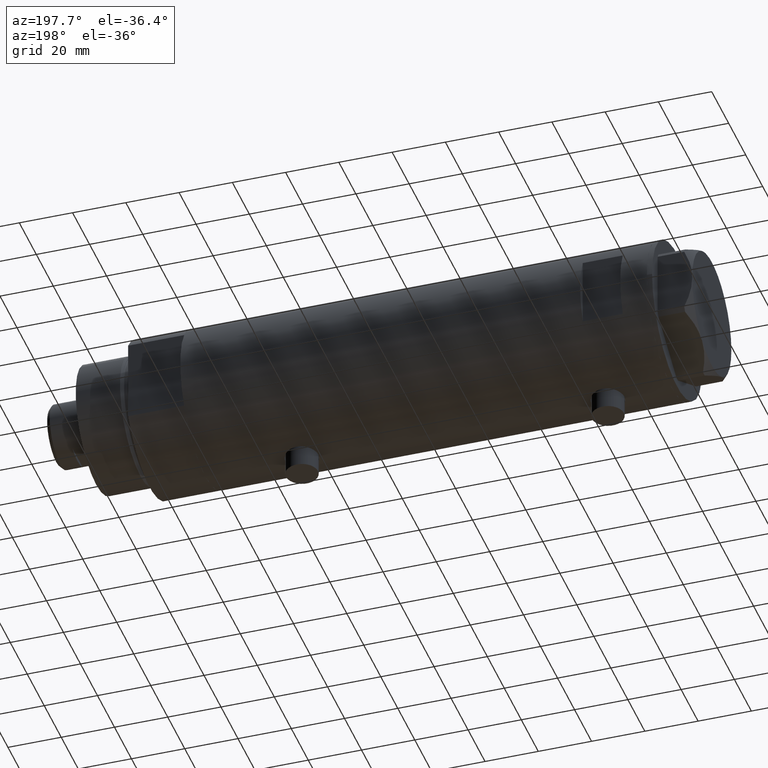
[diagram: clean part render]
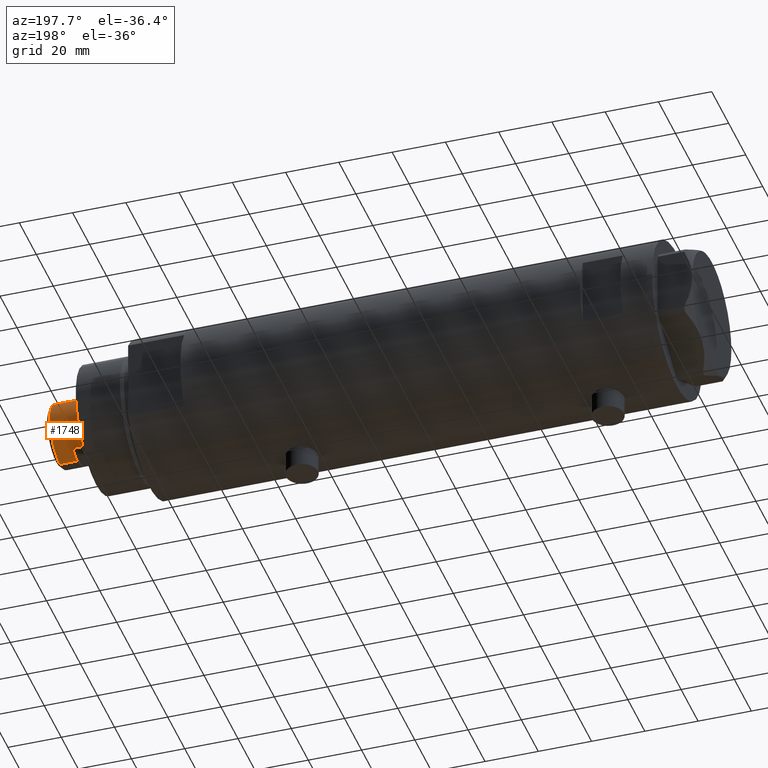
[diagram: same view with one face highlighted and labeled with its STEP entity id]
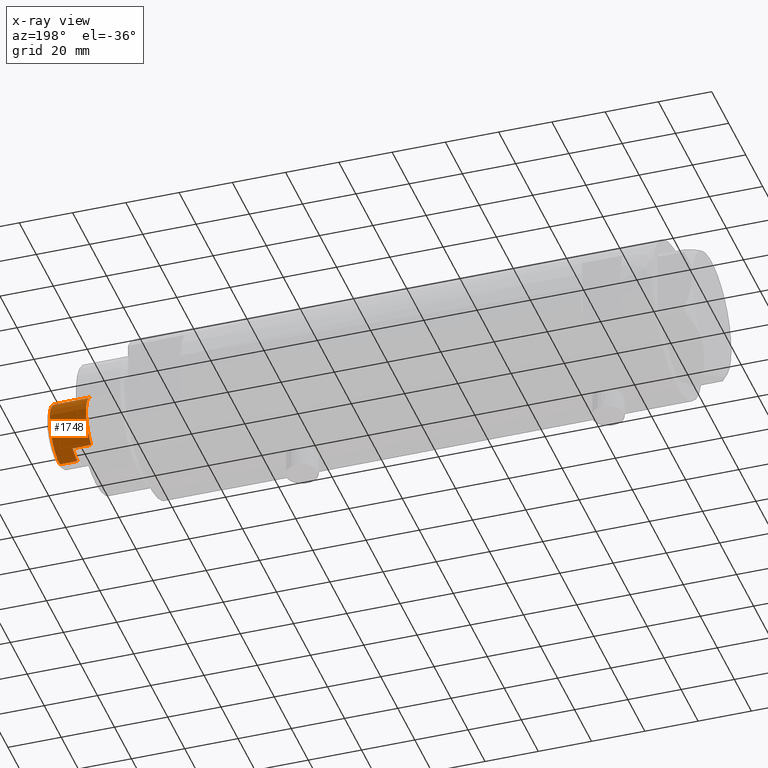
[diagram: x-ray of the same camera — body ghosted, the highlighted face saturated]
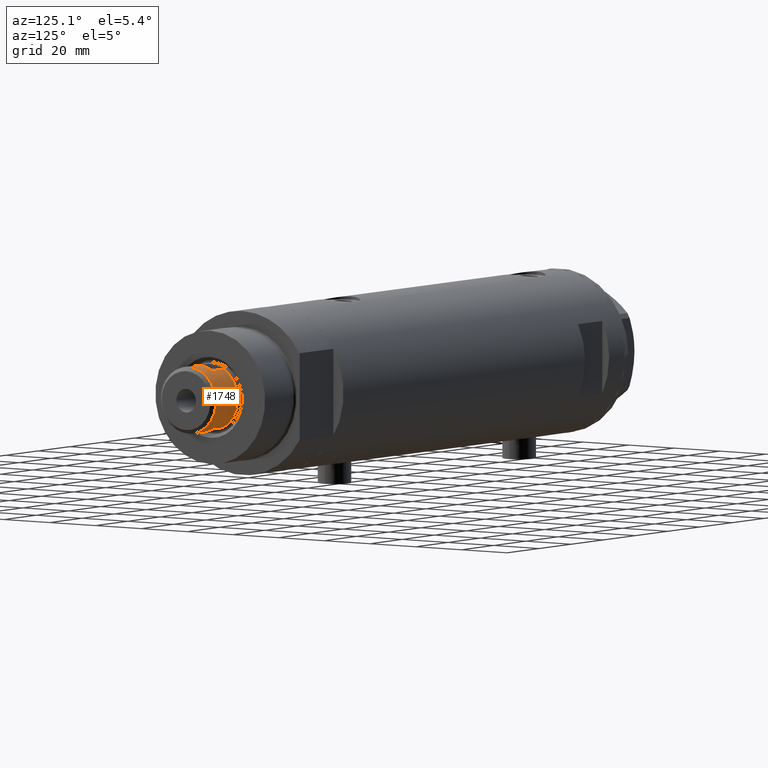
[diagram: same view with one face highlighted and labeled with its STEP entity id]
A machine part, auxiliary view. The second image highlights one B-rep face of the part: STEP entity #1748.
The next image is the same camera in x-ray: the body ghosted, the highlighted face saturated — about 0% of this face is hidden behind the body in this view.
A second angle (auxiliary view) of the same face is appended — the face is thin or edge-on in the first view.
In plain terms, the highlighted cylindrical surface (edge-blend (fillet) strip) has radius 12 mm, axis along (-1, -0, 0).
Its self-contained STEP definition (entity closure, byte-faithful):
#38 = VERTEX_POINT ( 'NONE', #2327 ) ;
#71 = VERTEX_POINT ( 'NONE', #2993 ) ;
#131 = ORIENTED_EDGE ( 'NONE', *, *, #311, .T. ) ;
#177 = DIRECTION ( 'NONE',  ( 1.000000000000000000, 0.000000000000000000, 0.000000000000000000 ) ) ;
#230 = DIRECTION ( 'NONE',  ( 0.000000000000000000, 0.000000000000000000, -1.000000000000000000 ) ) ;
#311 = EDGE_CURVE ( 'NONE', #2133, #2904, #3283, .T. ) ;
#364 = ORIENTED_EDGE ( 'NONE', *, *, #1827, .T. ) ;
#419 = CARTESIAN_POINT ( 'NONE',  ( 12.00000000000000000, 1.469576158976823947E-15, 199.7000000000000171 ) ) ;
#480 = EDGE_CURVE ( 'NONE', #4431, #2133, #2255, .T. ) ;
#583 = VECTOR ( 'NONE', #3518, 1000.000000000000000 ) ;
#631 = EDGE_LOOP ( 'NONE', ( #993, #1471, #3395, #3377, #131, #3063, #364, #2964 ) ) ;
#873 = DIRECTION ( 'NONE',  ( 0.000000000000000000, 0.000000000000000000, 1.000000000000000000 ) ) ;
#993 = ORIENTED_EDGE ( 'NONE', *, *, #2287, .T. ) ;
#1010 = CARTESIAN_POINT ( 'NONE',  ( -10.48861764008966269, 5.829999999999999183, 199.7000000000000171 ) ) ;
#1037 = CARTESIAN_POINT ( 'NONE',  ( -12.00000000000000000, 0.000000000000000000, 199.7000000000000171 ) ) ;
#1241 = CARTESIAN_POINT ( 'NONE',  ( 12.00000000000000355, 1.469576158976824342E-15, 199.7000000000000171 ) ) ;
#1284 = DIRECTION ( 'NONE',  ( -0.000000000000000000, -0.000000000000000000, -1.000000000000000000 ) ) ;
#1335 = EDGE_CURVE ( 'NONE', #38, #2904, #4441, .T. ) ;
#1387 = EDGE_CURVE ( 'NONE', #2714, #3203, #4143, .T. ) ;
#1419 = LINE ( 'NONE', #419, #583 ) ;
#1471 = ORIENTED_EDGE ( 'NONE', *, *, #2084, .T. ) ;
#1591 = CIRCLE ( 'NONE', #3376, 12.00000000000000178 ) ;
#1616 = CARTESIAN_POINT ( 'NONE',  ( 10.48861764008966269, 5.830000000000000071, 199.7000000000000171 ) ) ;
#1648 = AXIS2_PLACEMENT_3D ( 'NONE', #2518, #3809, #2846 ) ;
#1748 = ADVANCED_FACE ( 'NONE', ( #2238 ), #3250, .T. ) ;
#1827 = EDGE_CURVE ( 'NONE', #38, #3203, #1591, .T. ) ;
#1882 = CIRCLE ( 'NONE', #4393, 12.00000000000000000 ) ;
#1947 = CARTESIAN_POINT ( 'NONE',  ( 0.000000000000000000, 0.000000000000000000, 206.2999999999999829 ) ) ;
#2007 = DIRECTION ( 'NONE',  ( 0.000000000000000000, 0.000000000000000000, 1.000000000000000000 ) ) ;
#2020 = AXIS2_PLACEMENT_3D ( 'NONE', #2921, #4301, #3960 ) ;
#2029 = CARTESIAN_POINT ( 'NONE',  ( -12.00000000000000355, 0.000000000000000000, 199.7000000000000171 ) ) ;
#2040 = VERTEX_POINT ( 'NONE', #1241 ) ;
#2075 = CARTESIAN_POINT ( 'NONE',  ( 0.000000000000000000, 0.000000000000000000, 199.7000000000000171 ) ) ;
#2084 = EDGE_CURVE ( 'NONE', #71, #2040, #1419, .T. ) ;
#2133 = VERTEX_POINT ( 'NONE', #2502 ) ;
#2137 = CARTESIAN_POINT ( 'NONE',  ( -10.48861764008966446, 5.830000000000181259, 192.7000000000000171 ) ) ;
#2171 = CARTESIAN_POINT ( 'NONE',  ( 10.48861764008966269, 5.830000000000000071, 199.7000000000000171 ) ) ;
#2235 = CARTESIAN_POINT ( 'NONE',  ( 0.000000000000000000, 0.000000000000000000, 199.7000000000000171 ) ) ;
#2238 = FACE_OUTER_BOUND ( 'NONE', #631, .T. ) ;
#2255 = LINE ( 'NONE', #1616, #3513 ) ;
#2287 = EDGE_CURVE ( 'NONE', #2714, #71, #1882, .T. ) ;
#2327 = CARTESIAN_POINT ( 'NONE',  ( -10.48861764008966269, 5.829999999999999183, 199.7000000000000171 ) ) ;
#2377 = DIRECTION ( 'NONE',  ( -0.000000000000000000, -0.000000000000000000, -1.000000000000000000 ) ) ;
#2424 = DIRECTION ( 'NONE',  ( 1.000000000000000000, 0.000000000000000000, 0.000000000000000000 ) ) ;
#2502 = CARTESIAN_POINT ( 'NONE',  ( 10.48861764008966269, 5.830000000000000071, 192.7000000000000171 ) ) ;
#2518 = CARTESIAN_POINT ( 'NONE',  ( 0.000000000000000000, 0.000000000000000000, 192.7000000000000171 ) ) ;
#2663 = VECTOR ( 'NONE', #2377, 1000.000000000000000 ) ;
#2714 = VERTEX_POINT ( 'NONE', #3049 ) ;
#2812 = AXIS2_PLACEMENT_3D ( 'NONE', #2235, #873, #177 ) ;
#2846 = DIRECTION ( 'NONE',  ( 1.000000000000000000, 0.000000000000000000, 0.000000000000000000 ) ) ;
#2904 = VERTEX_POINT ( 'NONE', #2137 ) ;
#2921 = CARTESIAN_POINT ( 'NONE',  ( 0.000000000000000000, 0.000000000000000000, 199.7000000000000171 ) ) ;
#2964 = ORIENTED_EDGE ( 'NONE', *, *, #1387, .F. ) ;
#2993 = CARTESIAN_POINT ( 'NONE',  ( 12.00000000000000000, 1.469576158976823947E-15, 206.2999999999999829 ) ) ;
#3049 = CARTESIAN_POINT ( 'NONE',  ( -12.00000000000000000, 0.000000000000000000, 206.2999999999999829 ) ) ;
#3063 = ORIENTED_EDGE ( 'NONE', *, *, #1335, .F. ) ;
#3203 = VERTEX_POINT ( 'NONE', #2029 ) ;
#3250 = CYLINDRICAL_SURFACE ( 'NONE', #2020, 12.00000000000000000 ) ;
#3283 = CIRCLE ( 'NONE', #1648, 12.00000000000009059 ) ;
#3376 = AXIS2_PLACEMENT_3D ( 'NONE', #2075, #2007, #2424 ) ;
#3377 = ORIENTED_EDGE ( 'NONE', *, *, #480, .T. ) ;
#3395 = ORIENTED_EDGE ( 'NONE', *, *, #4116, .T. ) ;
#3513 = VECTOR ( 'NONE', #1284, 1000.000000000000000 ) ;
#3518 = DIRECTION ( 'NONE',  ( -0.000000000000000000, -0.000000000000000000, -1.000000000000000000 ) ) ;
#3591 = VECTOR ( 'NONE', #4162, 1000.000000000000000 ) ;
#3757 = CIRCLE ( 'NONE', #2812, 12.00000000000000178 ) ;
#3809 = DIRECTION ( 'NONE',  ( 0.000000000000000000, 0.000000000000000000, 1.000000000000000000 ) ) ;
#3960 = DIRECTION ( 'NONE',  ( -1.000000000000000000, 0.000000000000000000, 0.000000000000000000 ) ) ;
#4116 = EDGE_CURVE ( 'NONE', #2040, #4431, #3757, .T. ) ;
#4143 = LINE ( 'NONE', #1037, #3591 ) ;
#4162 = DIRECTION ( 'NONE',  ( -0.000000000000000000, -0.000000000000000000, -1.000000000000000000 ) ) ;
#4236 = DIRECTION ( 'NONE',  ( 1.000000000000000000, 0.000000000000000000, 0.000000000000000000 ) ) ;
#4301 = DIRECTION ( 'NONE',  ( -0.000000000000000000, -0.000000000000000000, -1.000000000000000000 ) ) ;
#4393 = AXIS2_PLACEMENT_3D ( 'NONE', #1947, #230, #4236 ) ;
#4431 = VERTEX_POINT ( 'NONE', #2171 ) ;
#4441 = LINE ( 'NONE', #1010, #2663 ) ;